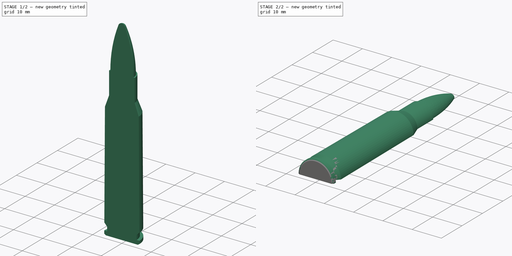
[diagram: build sequence overview — one tinted view per stage of 2, left to right]
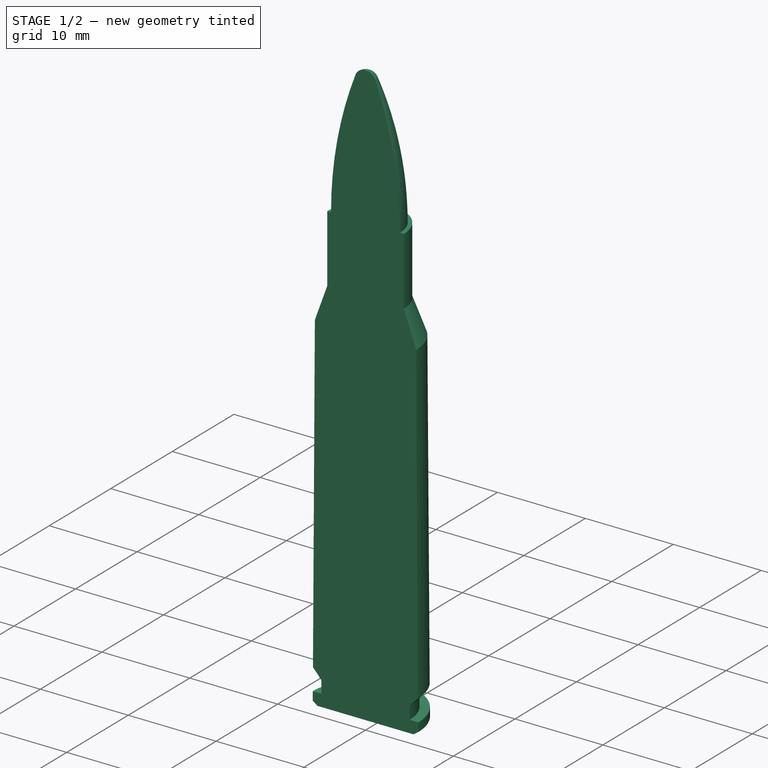
[diagram: stage 1 of 2 — iso view after this stage's code; geometry added in this stage tinted green]
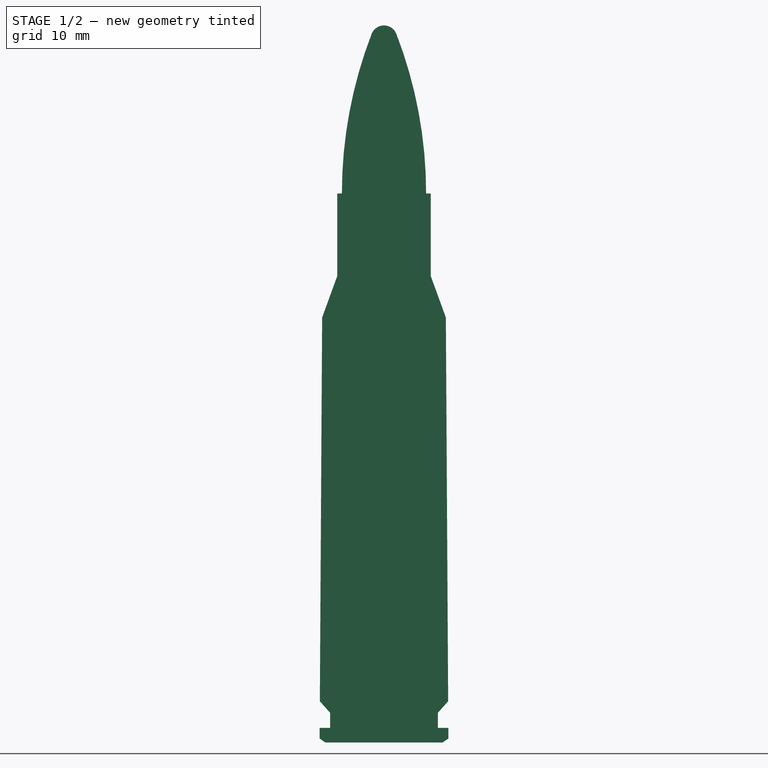
[diagram: stage 1 of 2 — front view after this stage's code; geometry added in this stage tinted green]
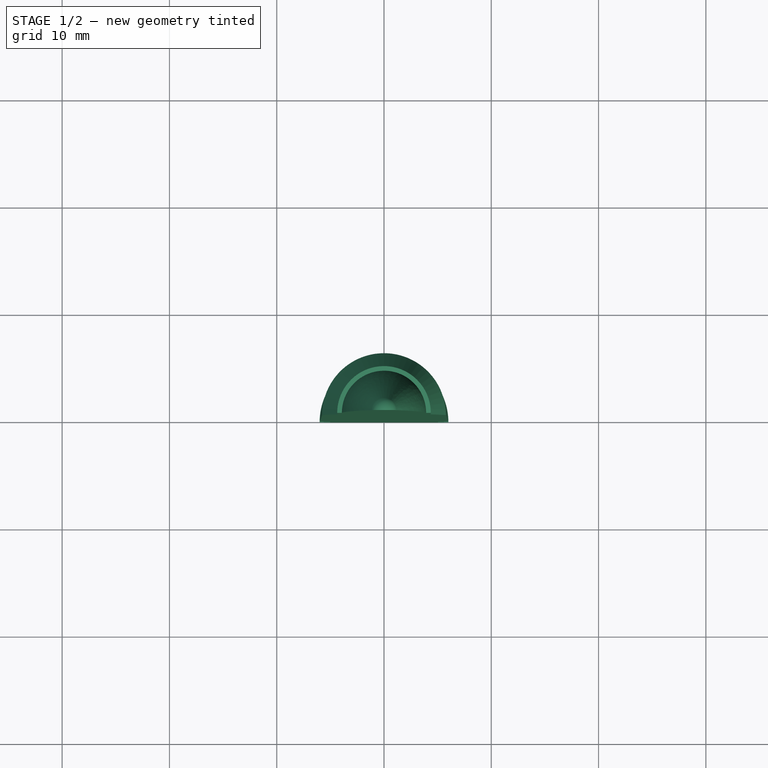
[diagram: stage 1 of 2 — top view after this stage's code; geometry added in this stage tinted green]
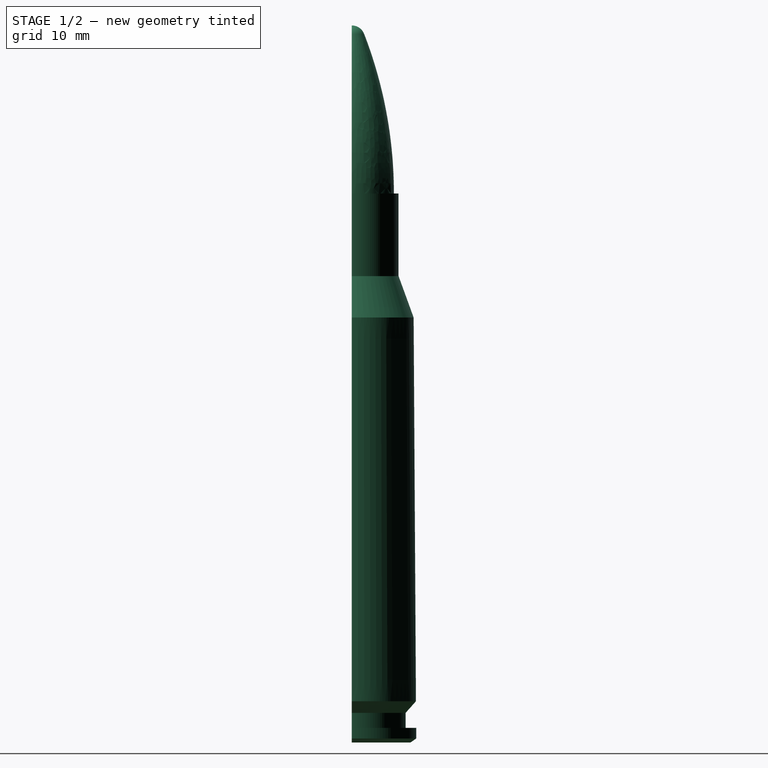
[diagram: stage 1 of 2 — right view after this stage's code; geometry added in this stage tinted green]
FCSTD DOCUMENT
Label: 762x45magnet
objects: Sketcher::SketchObject×3, PartDesign::Revolution×2, Part::MultiFuse×1, PartDesign::Pocket×1
note: 7 computed .brp shape members not serialized (recipe doc carries the construction recipe); baked Part::Feature solids carry a one-line shape summary decoded from their .brp

FEATURE [Sketcher::SketchObject] Sketch
  Placement = pos=(0,0,0) rot=(1,0,0;1.5708rad)
  sketch-geometry (7):
    g0: LineSegment [constr] StartX=-6.15376 StartY=66.84 StartZ=0 EndX=9.68941 EndY=66.84 EndZ=0
    g1: LineSegment [constr] StartX=3.925 StartY=5.14674 StartZ=0 EndX=3.925 EndY=-9.53476 EndZ=0
    g2: ArcOfCircle CenterX=-37.3337 CenterY=51.1799 CenterZ=0 NormalX=0 NormalY=0 NormalZ=1 Radius=41.2587 StartAngle=1.59115e-06 EndAngle=0.368708
    g3: LineSegment [constr] StartX=0.159381 StartY=68.6195 StartZ=0 EndX=2.84874 EndY=61.659 EndZ=0
    g4: LineSegment StartX=0 StartY=66.84 StartZ=0 EndX=0 EndY=51.18 EndZ=0
    g5: LineSegment StartX=0 StartY=51.18 StartZ=0 EndX=3.925 EndY=51.18 EndZ=0
    g6: ArcOfCircle CenterX=0 CenterY=65.6048 CenterZ=0 NormalX=0 NormalY=0 NormalZ=1 Radius=1.23517 StartAngle=0.368707 EndAngle=1.5708
  constraints (26):
    c: Horizontal(g0)
    c: Vertical(g1)
    c: Tangent(g2,g3)
    c: PointOnObject(g2,g1)
    c: Tangent(g1,g2)
    c: Vertical(g4)
    c: Coincident(g4,g5)
    c: Coincident(g5,g2)
    c: Horizontal(g5)
    c: DistanceX(g4) = 0
    c: DistanceY(g4) = 51.18
    c: DistanceY(g4) = -15.66
    c: PointOnObject(g2,g3)
    c: Distance(g5) = 3.925
    c: PointOnObject(g6,g4)
    c: Coincident(g6,g4)
    c: Coincident(g6,g2)
    c: Tangent(g3,g6)
    c: Radius(g6) = 1.23517
    c: Distance(g3) = 7.46193
    c: Distance(g1) = 14.6815
    c: Distance(g0) = 15.8432
    c: DistanceX(g3) = 2.84874
    c: DistanceY(g1) = 5.14674
    c: Tangent(g6,g0)
    c: DistanceX(g0) = -6.15376
FEATURE [Sketcher::SketchObject] Sketch001
  Placement = pos=(0,0,0) rot=(1,0,0;1.5708rad)
  sketch-geometry (16):
    g0: LineSegment StartX=0 StartY=0 StartZ=0 EndX=5.4623 EndY=0 EndZ=0
    g1: LineSegment StartX=5.4623 StartY=0 StartZ=0 EndX=6.005 EndY=0.38 EndZ=0
    g2: LineSegment StartX=6.005 StartY=0.38 StartZ=0 EndX=6.005 EndY=1.37 EndZ=0
    g3: LineSegment StartX=6.005 StartY=1.37 StartZ=0 EndX=5.02 EndY=1.37 EndZ=0
    g4: LineSegment StartX=5.02 StartY=1.37 StartZ=0 EndX=5.02 EndY=2.77 EndZ=0
    g5: LineSegment StartX=5.02 StartY=2.77 StartZ=0 EndX=5.98 EndY=3.85 EndZ=0
    g6: LineSegment StartX=5.98 StartY=3.85 StartZ=0 EndX=5.765 EndY=39.62 EndZ=0
    g7: LineSegment StartX=5.765 StartY=39.62 StartZ=0 EndX=4.36 EndY=43.48 EndZ=0
    g8: LineSegment StartX=4.36 StartY=43.48 StartZ=0 EndX=4.36 EndY=51.18 EndZ=0
    g9: LineSegment StartX=4.36 StartY=51.18 StartZ=0 EndX=0 EndY=51.18 EndZ=0
    g10: LineSegment StartX=0 StartY=51.18 StartZ=0 EndX=0 EndY=0 EndZ=0
    g11: LineSegment [constr] StartX=5.98 StartY=3.85 StartZ=0 EndX=0 EndY=3.85 EndZ=0
    g12: LineSegment [constr] StartX=5.02 StartY=2.77 StartZ=0 EndX=0 EndY=2.77 EndZ=0
    g13: LineSegment [constr] StartX=5.765 StartY=39.62 StartZ=0 EndX=0 EndY=39.62 EndZ=0
    g14: LineSegment [constr] StartX=4.36 StartY=43.48 StartZ=0 EndX=0 EndY=43.48 EndZ=0
    g15: LineSegment [constr] StartX=6.005 StartY=0.38 StartZ=0 EndX=0 EndY=0.38 EndZ=0
  constraints (48):
    c: Horizontal(g0)
    c: Coincident(g0,g1)
    c: Coincident(g1,g2)
    c: Vertical(g2)
    c: Coincident(g2,g3)
    c: Horizontal(g3)
    c: Coincident(g3,g4)
    c: Vertical(g4)
    c: Coincident(g4,g5)
    c: Coincident(g5,g6)
    c: Coincident(g6,g7)
    c: Coincident(g7,g8)
    c: Vertical(g8)
    c: Coincident(g8,g9)
    c: Horizontal(g9)
    c: Coincident(g9,g10)
    c: Coincident(g10,g0)
    c: Vertical(g10)
    c: DistanceY(g0,g1) = 0.38
    c: DistanceY(g2,g0) = -1.37
    c: DistanceY(g3,g4) = 1.4
    c: DistanceY(g0,g5) = 3.85
    c: DistanceY(g0,g6) = 39.62
    c: DistanceY(g0,g7) = 43.48
    c: DistanceY(g0,g8) = 51.18
    c: DistanceX(g3,g0) = -5.02
    c: Coincident(g11,g5)
    c: PointOnObject(g11,g10)
    c: Horizontal(g11)
    c: Distance(g11) = 5.98
    c: Coincident(g12,g4)
    c: PointOnObject(g12,g10)
    c: Horizontal(g12)
    c: Coincident(g13,g6)
    c: PointOnObject(g13,g10)
    c: Horizontal(g13)
    c: Distance(g13) = 5.765
    c: Coincident(g14,g7)
    c: PointOnObject(g14,g10)
    c: Horizontal(g14)
    c: Distance(g14) = 4.36
    c: Angle(g1) = 0.610865
    c: DistanceX(g0) = 0
    c: DistanceY(g0) = 0
    c: Coincident(g15,g1)
    c: PointOnObject(g15,g10)
    c: Horizontal(g15)
    c: Distance(g15) = 6.005
FEATURE [PartDesign::Revolution] Revolution
  Angle = 180
  Axis = (0,1,0)
  Base = (0,0,0)
  Sketch = -> Sketch001
FEATURE [PartDesign::Revolution] Revolution001
  Angle = 180
  Axis = (0,1,0)
  Base = (0,0,0)
  Sketch = -> Sketch
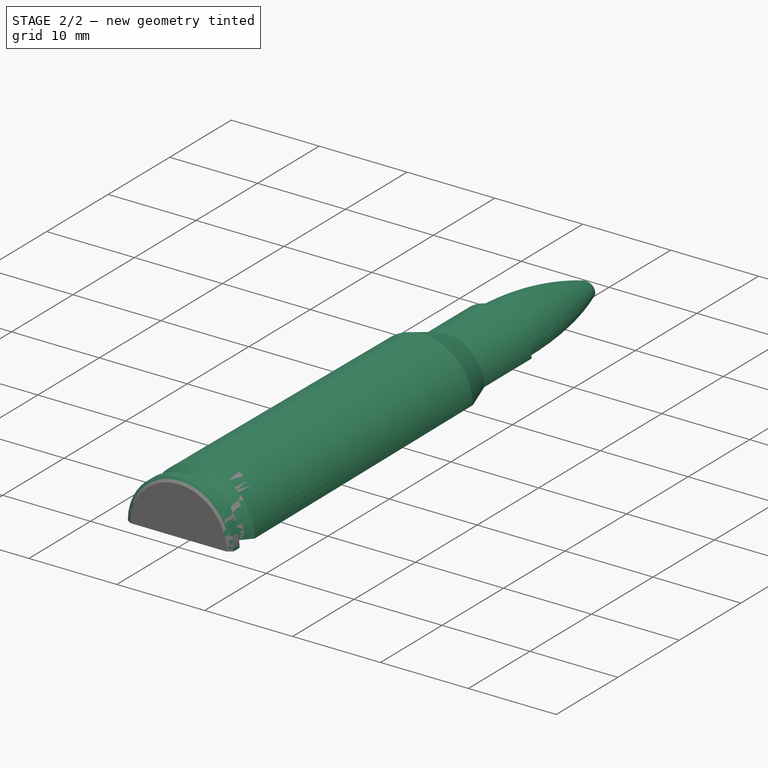
[diagram: stage 2 of 2 — iso view after this stage's code; geometry added in this stage tinted green]
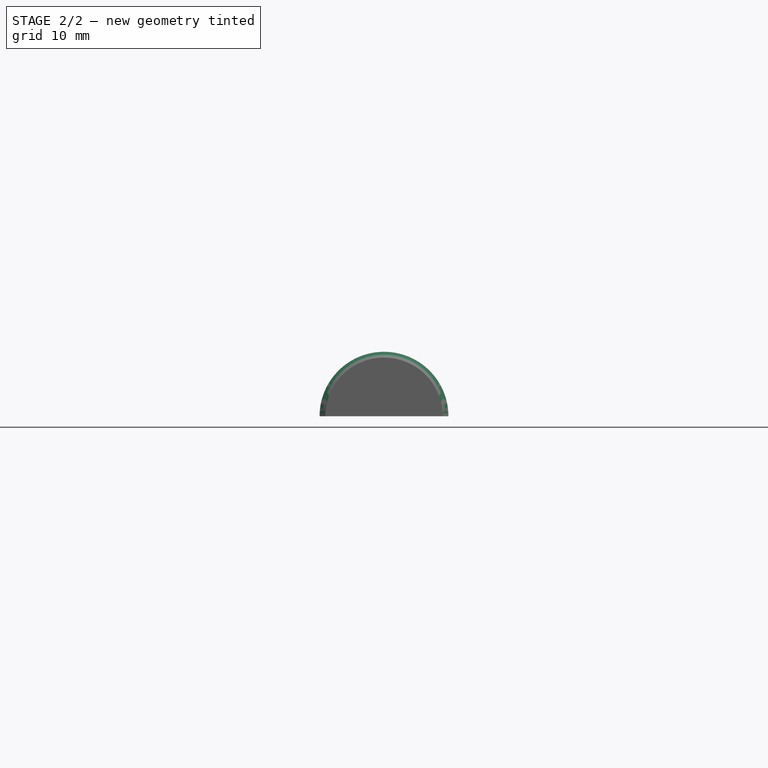
[diagram: stage 2 of 2 — front view after this stage's code; geometry added in this stage tinted green]
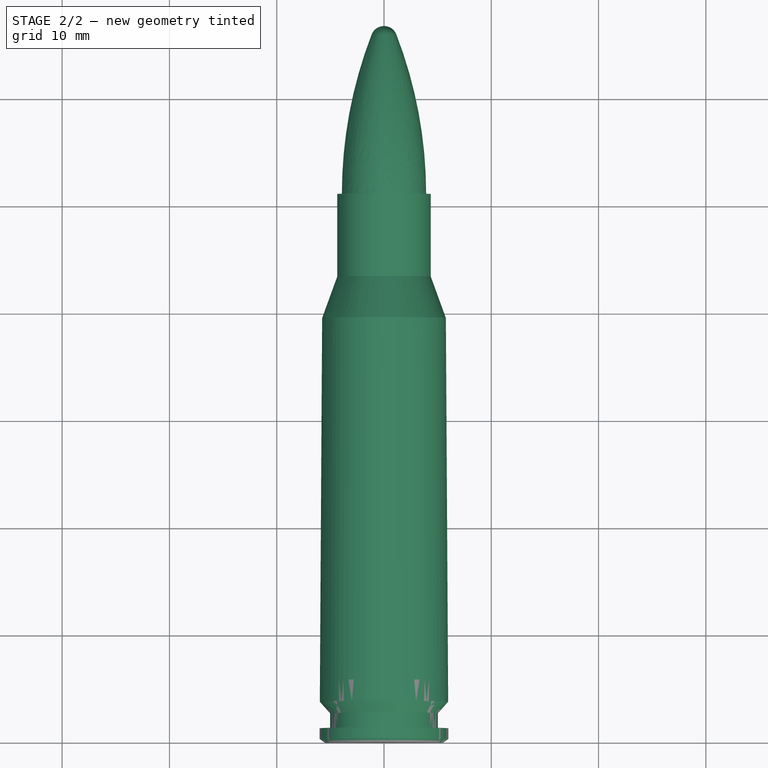
[diagram: stage 2 of 2 — top view after this stage's code; geometry added in this stage tinted green]
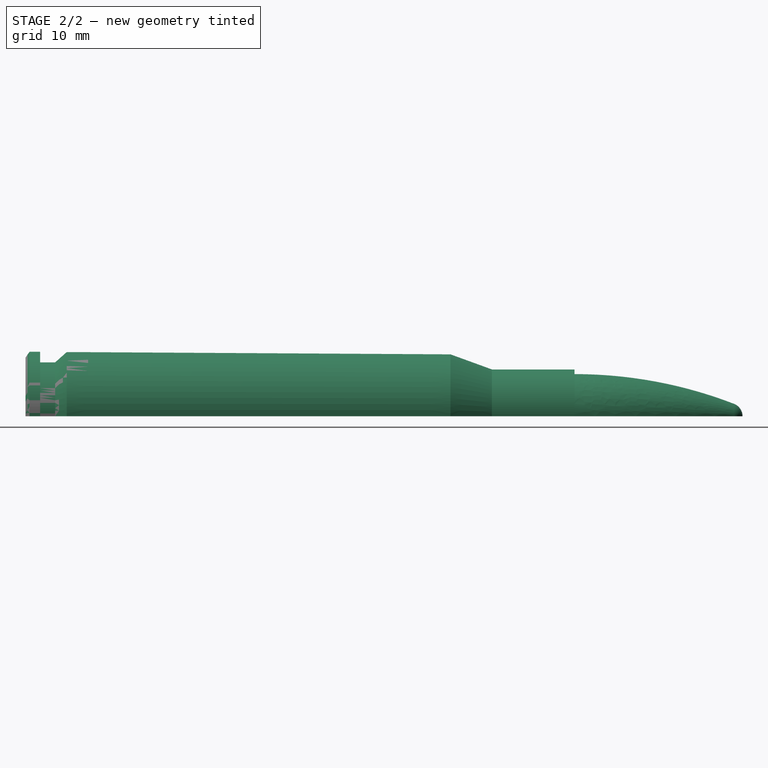
[diagram: stage 2 of 2 — right view after this stage's code; geometry added in this stage tinted green]
FEATURE [Part::MultiFuse] Fusion
  Shapes = -> [Revolution001,Revolution]
FEATURE [Sketcher::SketchObject] Sketch002
  Placement = pos=(0,0,0) rot=(1,0,0;1.5708rad)
  Support = -> Fusion [Face6]
  sketch-geometry (2):
    g0: Circle CenterX=0 CenterY=35 CenterZ=0 NormalX=0 NormalY=0 NormalZ=1 Radius=3.2
    g1: Circle CenterX=0 CenterY=15 CenterZ=0 NormalX=0 NormalY=0 NormalZ=1 Radius=3.2
  constraints (6):
    c: Radius(g0) = 3.2
    c: DistanceX(g0) = 0
    c: DistanceY(g0) = 35
    c: Radius(g1) = 3.2
    c: DistanceX(g1) = 0
    c: DistanceY(g1) = 15
FEATURE [PartDesign::Pocket] Pocket
  Length = 1.8
  Placement = pos=(0,0,0) rot=(0,0.707107,0.707107;3.14159rad)
  Sketch = -> Sketch002
  Type = 0
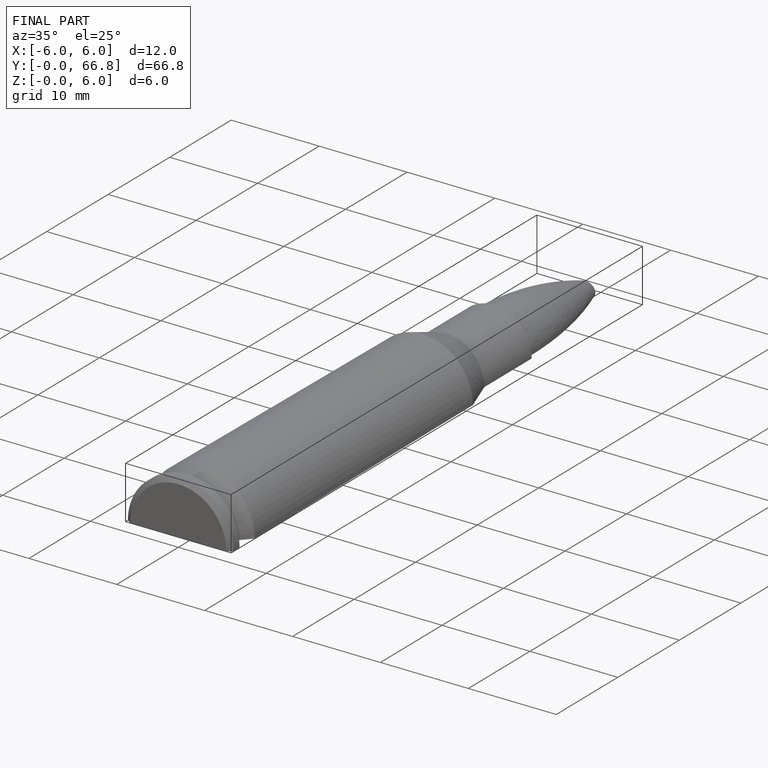
[diagram: finished part — iso view with bounding-box wireframe]
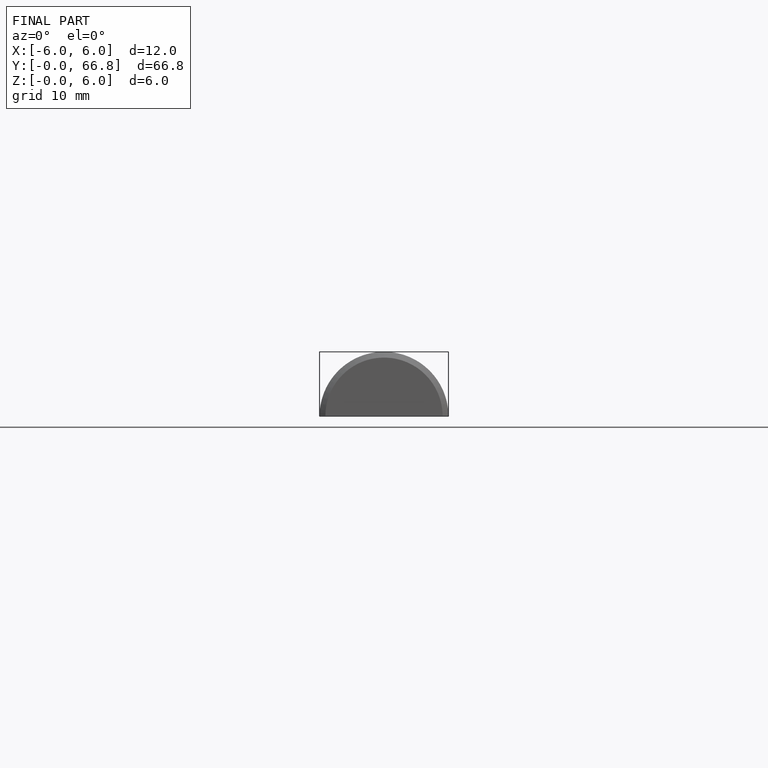
[diagram: finished part — front view with bounding-box wireframe]
